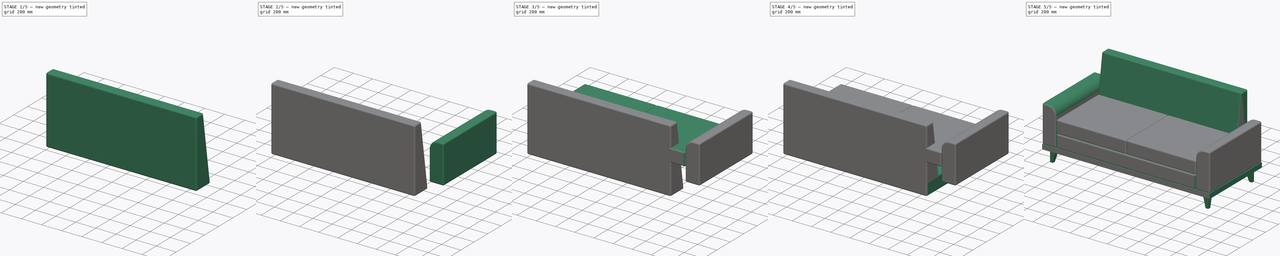
[diagram: build sequence overview — one tinted view per stage of 5, left to right]
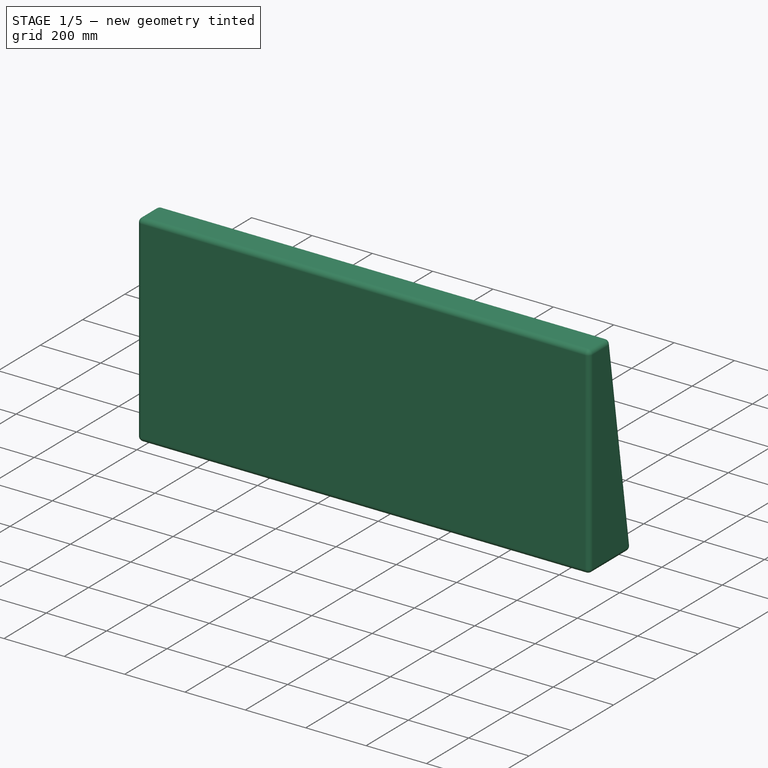
[diagram: stage 1 of 5 — iso view after this stage's code; geometry added in this stage tinted green]
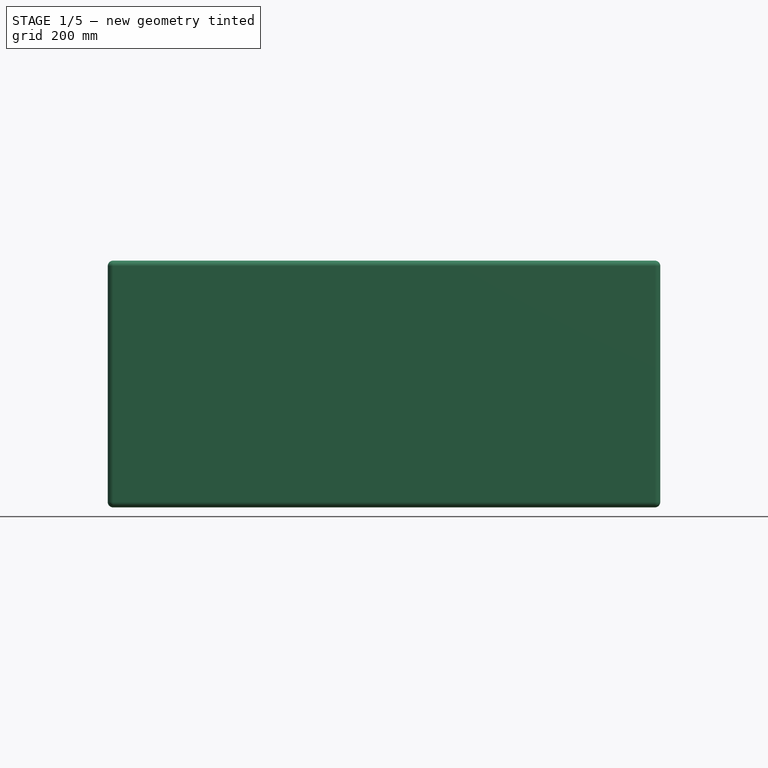
[diagram: stage 1 of 5 — front view after this stage's code; geometry added in this stage tinted green]
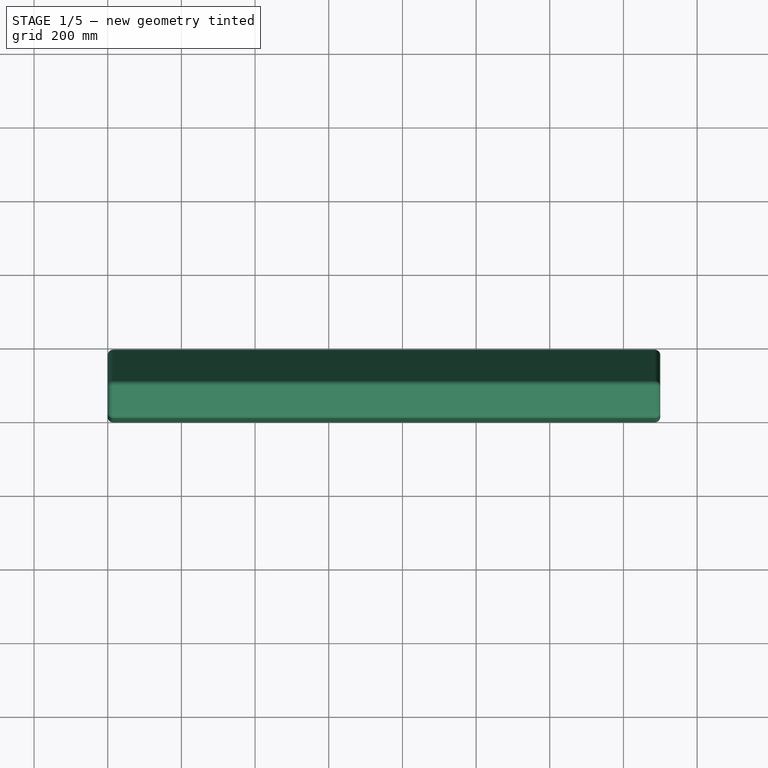
[diagram: stage 1 of 5 — top view after this stage's code; geometry added in this stage tinted green]
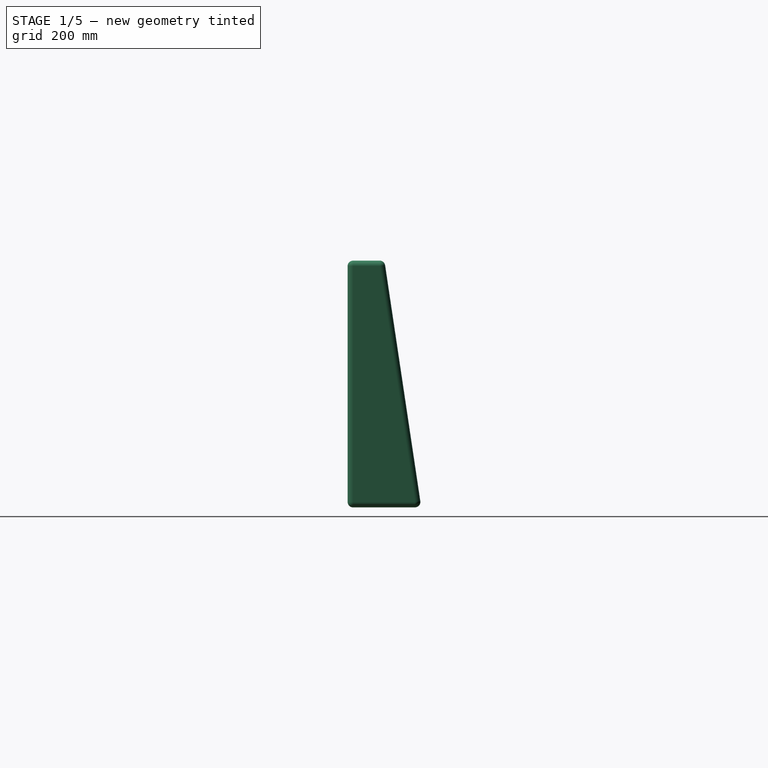
[diagram: stage 1 of 5 — right view after this stage's code; geometry added in this stage tinted green]
FCSTD DOCUMENT  (FreeCAD 0.21R33668 +26 (Git))
Label: Poltrona
License: All rights reserved
objects: Sketcher::SketchObject×7, Part::FeaturePython×6, PartDesign::Pad×4, PartDesign::Fillet×4, PartDesign::Body×4, Part::Extrusion×1, Part::Loft×1, Part::Compound×1
note: 36 computed .brp shape members not serialized (recipe doc carries the construction recipe); baked Part::Feature solids carry a one-line shape summary decoded from their .brp

FEATURE [Part::FeaturePython] Point  label="Propriedades Poltrona"  # WARN: FeaturePython — macro-defined, semantics opaque (R4)
  AlturaAcento = 460
  AlturaBraco = 400
  AlturaEscora = 850
  AlturaPe = 130
  Comprimento = 1800
  Largura = 800
  LarguraBraco = 150
  LarguraEscora = 100
  LarguraPe = 30
  NumAcentos = 2
  RaioEstofado = 15
  X = 0
  Y = 0
  Z = 0
FEATURE [Sketcher::SketchObject] Sketch
  FullyConstrained = true
  expr: Constraints[10] = <<Propriedades Poltrona>>.Largura
  expr: Constraints[9] = <<Propriedades Poltrona>>.Comprimento
  sketch-geometry (4):
    g0: LineSegment StartX=0 StartY=0 StartZ=0 EndX=1800 EndY=0 EndZ=0
    g1: LineSegment StartX=1800 StartY=0 StartZ=0 EndX=1800 EndY=800 EndZ=0
    g2: LineSegment StartX=1800 StartY=800 StartZ=0 EndX=0 EndY=800 EndZ=0
    g3: LineSegment StartX=0 StartY=800 StartZ=0 EndX=0 EndY=0 EndZ=0
  constraints (11):
    c: Coincident(g0,g1)
    c: Coincident(g1,g2)
    c: Coincident(g2,g3)
    c: Coincident(g3,g0)
    c: Horizontal(g0)
    c: Horizontal(g2)
    c: Vertical(g1)
    c: Vertical(g3)
    c: Coincident(g0,g-1)
    c: DistanceX(g2,g2) = 1800
    c: DistanceY(g1,g1) = 800
FEATURE [Part::Extrusion] Extrude  label="Base Madeira"
  Base = -> Sketch
  Dir = (0,0,1)
  DirMode = 2
  FaceMakerClass = Part::FaceMakerBullseye
  LengthFwd = 50
  LengthRev = 0
  Placement = pos=(0,0,130) rot=(0,0,1;0rad)
  Solid = true
  Symmetric = false
  expr: .Placement.Base.z = <<Propriedades Poltrona>>.AlturaPe
FEATURE [Sketcher::SketchObject] Sketch006
  FullyConstrained = true
  Placement = pos=(0,0,0) rot=(0.57735,0.57735,0.57735;2.0944rad)
  expr: Constraints[10] = 2 * <<Propriedades Poltrona>>.LarguraEscora
  expr: Constraints[8] = <<Propriedades Poltrona>>.AlturaEscora - <<Propriedades Poltrona>>.AlturaPe - <<Base Madeira>>.LengthFwd
  expr: Constraints[9] = <<Propriedades Poltrona>>.LarguraEscora
  sketch-geometry (4):
    g0: LineSegment StartX=0 StartY=0 StartZ=0 EndX=0 EndY=670 EndZ=0
    g1: LineSegment StartX=0 StartY=670 StartZ=0 EndX=100 EndY=670 EndZ=0
    g2: LineSegment StartX=100 StartY=670 StartZ=0 EndX=200 EndY=0 EndZ=0
    g3: LineSegment StartX=0 StartY=0 StartZ=0 EndX=200 EndY=0 EndZ=0
  constraints (11):
    c: Coincident(g0,g-1)
    c: Vertical(g0)
    c: Coincident(g1,g0)
    c: Coincident(g2,g1)
    c: PointOnObject(g2,g-1)
    c: Coincident(g3,g0)
    c: Coincident(g3,g2)
    c: Horizontal(g1)
    c: DistanceY(g0,g0) = 670
    c: DistanceX(g1,g1) = 100
    c: DistanceX(g3,g3) = 200
FEATURE [PartDesign::Pad] Pad003
  Direction = (1,0,0)
  Length = 1500
  Length2 = 10
  Placement = pos=(0,0,0) rot=(0.57735,0.57735,0.57735;2.0944rad)
  Profile = -> Sketch006
  ReferenceAxis = -> Sketch006 [N_Axis]
  Type = 0
  expr: Length = <<Propriedades Poltrona>>.Comprimento - 2 * <<Propriedades Poltrona>>.LarguraBraco
FEATURE [PartDesign::Fillet] Fillet003
  Base = -> Pad003 [Face6,Face3,Face2,Face1,Face4,Face5]
  BaseFeature = -> Pad003
  Placement = pos=(0,0,0) rot=(0.57735,0.57735,0.57735;2.0944rad)
  Radius = 15
  SupportTransform = false
  UseAllEdges = false
  expr: Radius = <<Propriedades Poltrona>>.RaioEstofado
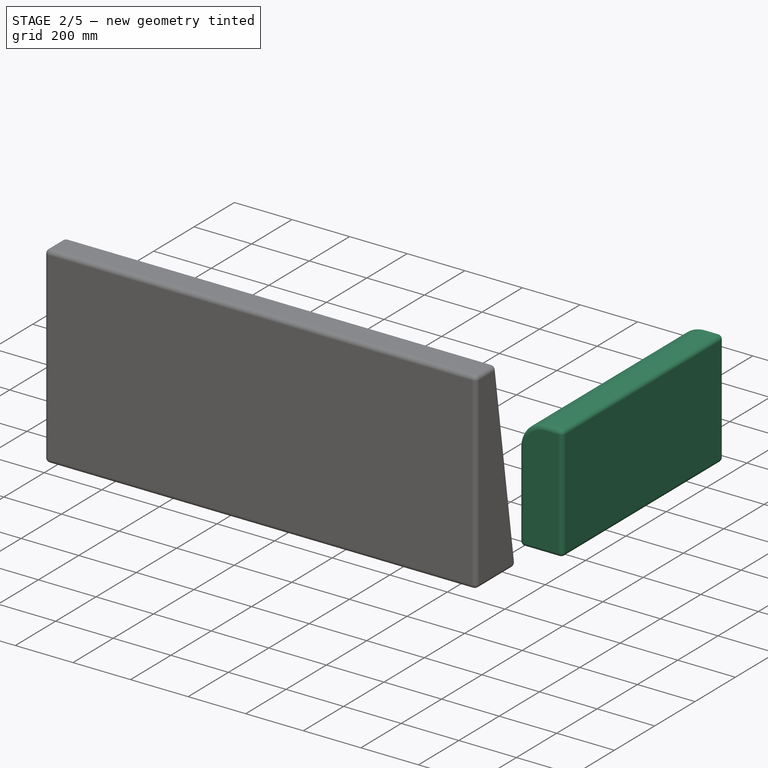
[diagram: stage 2 of 5 — iso view after this stage's code; geometry added in this stage tinted green]
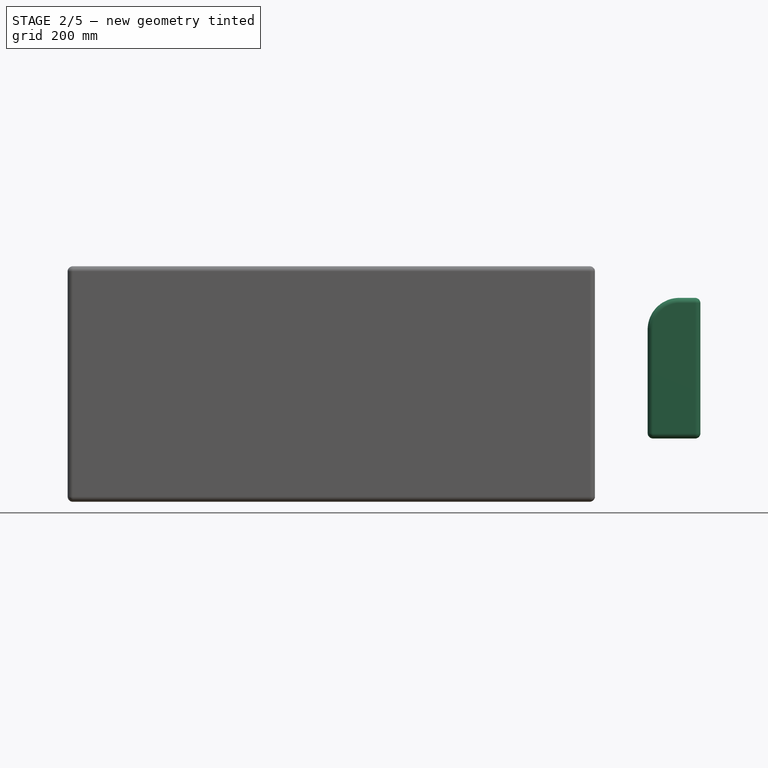
[diagram: stage 2 of 5 — front view after this stage's code; geometry added in this stage tinted green]
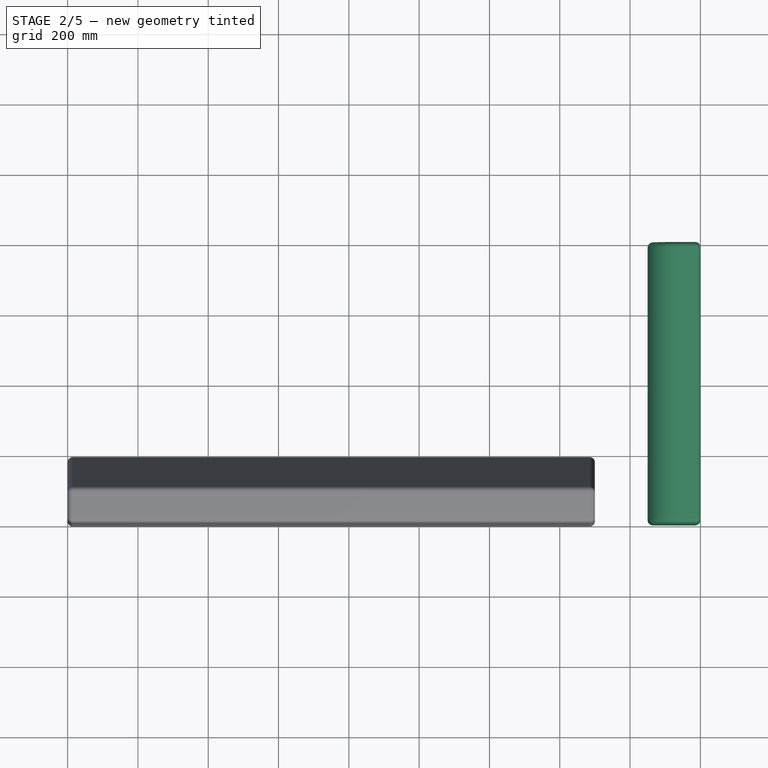
[diagram: stage 2 of 5 — top view after this stage's code; geometry added in this stage tinted green]
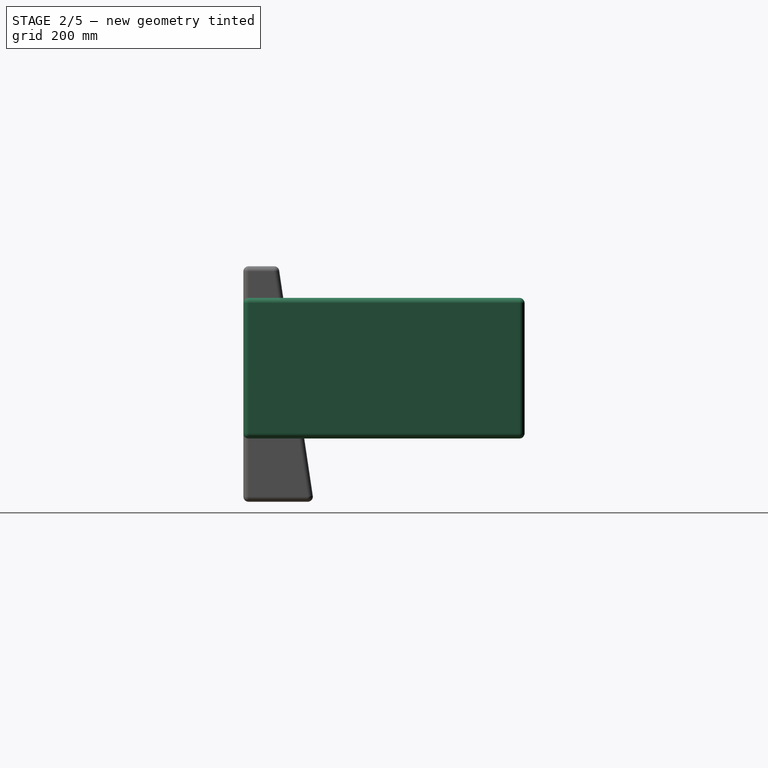
[diagram: stage 2 of 5 — right view after this stage's code; geometry added in this stage tinted green]
FEATURE [Sketcher::SketchObject] Sketch005
  FullyConstrained = true
  MapMode = 5
  Placement = pos=(0,0,0) rot=(1,0,0;1.5708rad)
  Support = -> [XZ_Plane002]
  expr: Constraints[14] = 0.6 * <<Propriedades Poltrona>>.LarguraBraco
  expr: Constraints[8] = <<Propriedades Poltrona>>.AlturaBraco
  expr: Constraints[9] = <<Propriedades Poltrona>>.LarguraBraco
  sketch-geometry (6):
    g0: LineSegment StartX=0 StartY=0 StartZ=0 EndX=150 EndY=0 EndZ=0
    g1: LineSegment StartX=150 StartY=0 StartZ=0 EndX=150 EndY=310 EndZ=0
    g2: LineSegment StartX=60 StartY=400 StartZ=0 EndX=0 EndY=400 EndZ=0
    g3: LineSegment StartX=0 StartY=400 StartZ=0 EndX=0 EndY=0 EndZ=0
    g4: ArcOfCircle CenterX=60 CenterY=310 CenterZ=0 NormalX=0 NormalY=0 NormalZ=1 AngleXU=0 Radius=90 StartAngle=2e-16 EndAngle=1.5708
    g5: GeomPoint X=150 Y=400 Z=0
  constraints (15):
    c: Coincident(g0,g1)
    c: Coincident(g2,g3)
    c: Coincident(g3,g0)
    c: Horizontal(g0)
    c: Horizontal(g2)
    c: Vertical(g1)
    c: Vertical(g3)
    c: Coincident(g0,g-1)
    c: DistanceY(g3,g3) = 400
    c: DistanceX(g0,g0) = 150
    c: PointOnObject(g5,g2)
    c: PointOnObject(g5,g1)
    c: Tangent(g2,g4) = -1.5708
    c: Tangent(g1,g4) = -1.5708
    c: Radius(g4) = 90
FEATURE [PartDesign::Pad] Pad002
  Direction = (0,-1,2e-16)
  Length = 800
  Length2 = 10
  Placement = pos=(0,0,0) rot=(1,0,0;1.5708rad)
  Profile = -> Sketch005
  ReferenceAxis = -> Sketch005 [N_Axis]
  Type = 0
  expr: Length = <<Propriedades Poltrona>>.Largura
FEATURE [PartDesign::Fillet] Fillet002
  Base = -> Pad002 [Edge1,Edge2,Edge3,Edge4,Edge5,Edge6,Edge7,Edge8,Edge9,Edge10,Edge11,Edge12,Edge13,Edge14,Edge15]
  BaseFeature = -> Pad002
  Placement = pos=(0,0,0) rot=(1,0,0;1.5708rad)
  Radius = 15
  SupportTransform = false
  UseAllEdges = true
  expr: Radius = <<Propriedades Poltrona>>.RaioEstofado
FEATURE [PartDesign::Body] Body002  label="Braco"
  Group = -> [Sketch005,Pad002,Fillet002]
  Origin = -> Origin002
  Placement = pos=(0,800,180) rot=(0,0,1;0rad)
  Tip = -> Fillet002
  expr: .Placement.Base.y = <<Propriedades Poltrona>>.Largura
  expr: .Placement.Base.z = <<Propriedades Poltrona>>.AlturaPe + <<Base Madeira>>.LengthFwd
FEATURE [Part::FeaturePython] Clone003  label="Braco001"  # Draft clone (typed FeaturePython)
  AttacherType = Attacher::AttachEngine3D
  Fuse = false
  Objects = -> [Body002]
  Placement = pos=(1800,0,180) rot=(0,0,1;3.14159rad)
  Scale = (1,1,1)
  expr: .Placement.Base.x = <<Propriedades Poltrona>>.Comprimento
  expr: .Placement.Base.z = <<Propriedades Poltrona>>.AlturaPe + <<Base Madeira>>.LengthFwd
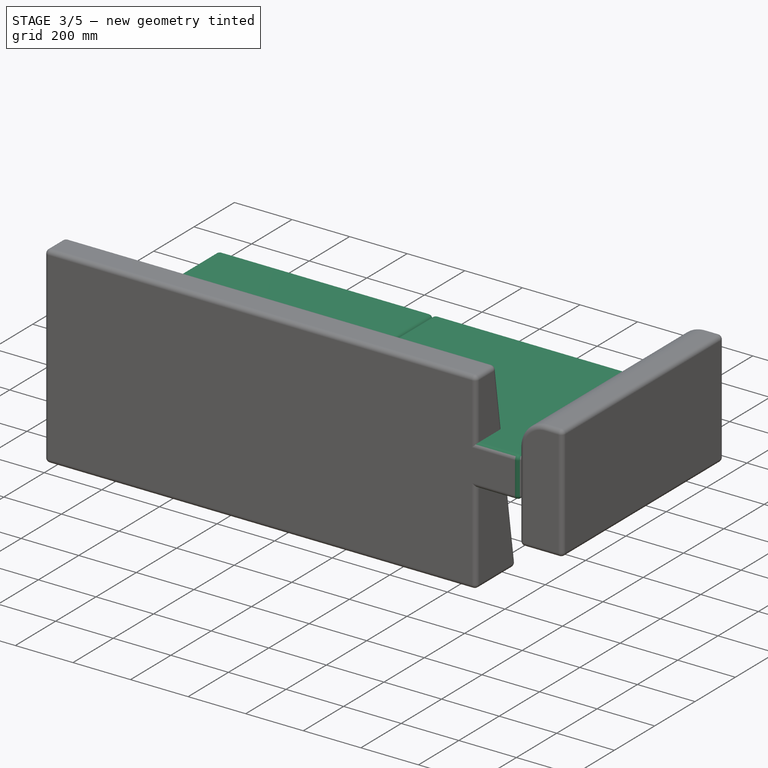
[diagram: stage 3 of 5 — iso view after this stage's code; geometry added in this stage tinted green]
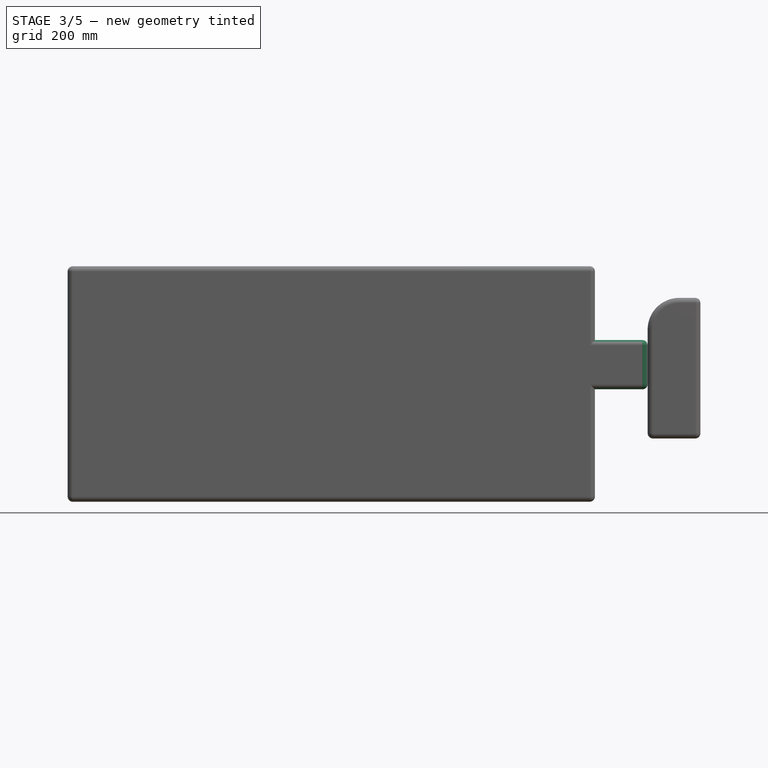
[diagram: stage 3 of 5 — front view after this stage's code; geometry added in this stage tinted green]
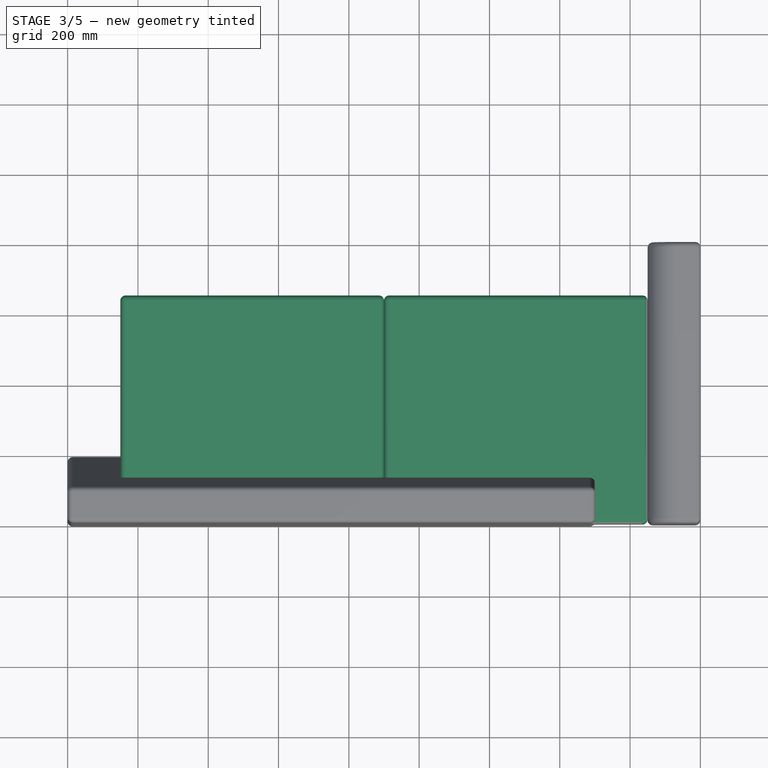
[diagram: stage 3 of 5 — top view after this stage's code; geometry added in this stage tinted green]
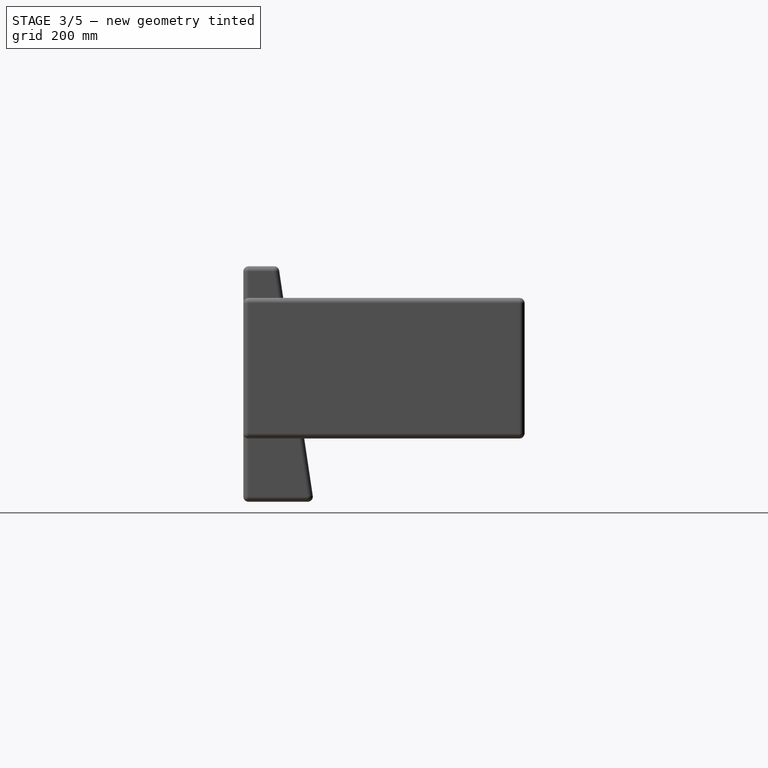
[diagram: stage 3 of 5 — right view after this stage's code; geometry added in this stage tinted green]
FEATURE [Sketcher::SketchObject] Sketch003
  FullyConstrained = true
  expr: Constraints[10] = <<Propriedades Poltrona>>.Largura - 1.5 * <<Propriedades Poltrona>>.LarguraEscora
  expr: Constraints[9] = <<Propriedades Poltrona>>.Comprimento - 2 * <<Propriedades Poltrona>>.LarguraBraco
  sketch-geometry (4):
    g0: LineSegment StartX=0 StartY=0 StartZ=0 EndX=1500 EndY=0 EndZ=0
    g1: LineSegment StartX=1500 StartY=0 StartZ=0 EndX=1500 EndY=650 EndZ=0
    g2: LineSegment StartX=1500 StartY=650 StartZ=0 EndX=0 EndY=650 EndZ=0
    g3: LineSegment StartX=0 StartY=650 StartZ=0 EndX=0 EndY=0 EndZ=0
  constraints (11):
    c: Coincident(g0,g1)
    c: Coincident(g1,g2)
    c: Coincident(g2,g3)
    c: Coincident(g3,g0)
    c: Horizontal(g0)
    c: Horizontal(g2)
    c: Vertical(g1)
    c: Vertical(g3)
    c: Coincident(g0,g-1)
    c: DistanceX(g2,g2) = 1500
    c: DistanceY(g1,g1) = 650
FEATURE [PartDesign::Pad] Pad
  Direction = (0,0,1)
  Length = 140
  Length2 = 10
  Profile = -> Sketch003
  ReferenceAxis = -> Sketch003 [N_Axis]
  Type = 0
  expr: Length = (<<Propriedades Poltrona>>.AlturaAcento - <<Propriedades Poltrona>>.AlturaPe - <<Base Madeira>>.LengthFwd) / 2
FEATURE [PartDesign::Body] Body  label="BaseEstofado"
  Group = -> [Sketch003,Pad,Fillet]
  Origin = -> Origin
  Placement = pos=(150,0,180) rot=(0,0,1;0rad)
  Tip = -> Fillet
  expr: .Placement.Base.x = <<Propriedades Poltrona>>.LarguraBraco
  expr: .Placement.Base.z = <<Propriedades Poltrona>>.AlturaPe + <<Base Madeira>>.LengthFwd
FEATURE [Sketcher::SketchObject] Sketch004
  FullyConstrained = true
  expr: Constraints[10] = <<Propriedades Poltrona>>.Largura - <<Propriedades Poltrona>>.LarguraEscora * 1.5
  expr: Constraints[9] = (<<Propriedades Poltrona>>.Comprimento - 2 * <<Propriedades Poltrona>>.LarguraBraco) / <<Propriedades Poltrona>>.NumAcentos
  sketch-geometry (4):
    g0: LineSegment StartX=0 StartY=0 StartZ=0 EndX=750 EndY=0 EndZ=0
    g1: LineSegment StartX=750 StartY=0 StartZ=0 EndX=750 EndY=650 EndZ=0
    g2: LineSegment StartX=750 StartY=650 StartZ=0 EndX=0 EndY=650 EndZ=0
    g3: LineSegment StartX=0 StartY=650 StartZ=0 EndX=0 EndY=0 EndZ=0
  constraints (11):
    c: Coincident(g0,g1)
    c: Coincident(g1,g2)
    c: Coincident(g2,g3)
    c: Coincident(g3,g0)
    c: Horizontal(g0)
    c: Horizontal(g2)
    c: Vertical(g1)
    c: Vertical(g3)
    c: Coincident(g0,g-1)
    c: DistanceX(g2,g2) = 750
    c: DistanceY(g1,g1) = 650
FEATURE [PartDesign::Pad] Pad001
  Direction = (0,0,1)
  Length = 140
  Length2 = 10
  Profile = -> Sketch004
  ReferenceAxis = -> Sketch004 [N_Axis]
  Type = 0
  expr: Length = (<<Propriedades Poltrona>>.AlturaAcento - <<Propriedades Poltrona>>.AlturaPe - <<Base Madeira>>.LengthFwd) / 2
FEATURE [PartDesign::Fillet] Fillet001
  Base = -> Pad001 [Edge1,Edge2,Edge3,Edge4,Edge5,Edge6,Edge7,Edge8,Edge9,Edge10,Edge11,Edge12]
  BaseFeature = -> Pad001
  Radius = 15
  SupportTransform = false
  UseAllEdges = true
  expr: Radius = <<Propriedades Poltrona>>.RaioEstofado
FEATURE [PartDesign::Body] Body001  label="Almofada"
  Group = -> [Sketch004,Pad001,Fillet001]
  Origin = -> Origin001
  Tip = -> Fillet001
FEATURE [Part::FeaturePython] Array  # Draft array (typed FeaturePython)
  Angle = 360
  ArrayType = 0
  Axis = (0,0,1)
  Base = -> Body001
  Center = (0,0,0)
  Count = 2
  Fuse = true
  IntervalAxis = (0,0,0)
  IntervalX = (750,0,0)
  IntervalY = (0,100,0)
  IntervalZ = (0,0,100)
  NumberCircles = 3
  NumberPolar = 5
  NumberX = 2
  NumberY = 1
  NumberZ = 1
  Placement = pos=(150,0,320) rot=(0,0,1;0rad)
  RadialDistance = 50
  Symmetry = 1
  TangentialDistance = 25
  expr: .IntervalX.x = (<<Propriedades Poltrona>>.Comprimento - 2 * <<Propriedades Poltrona>>.LarguraBraco) / <<Propriedades Poltrona>>.NumAcentos
  expr: .Placement.Base.x = <<Propriedades Poltrona>>.LarguraBraco
  expr: .Placement.Base.z = <<Propriedades Poltrona>>.AlturaPe + <<Base Madeira>>.LengthFwd + <<Pad>>.Length
  expr: NumberX = <<Propriedades Poltrona>>.NumAcentos
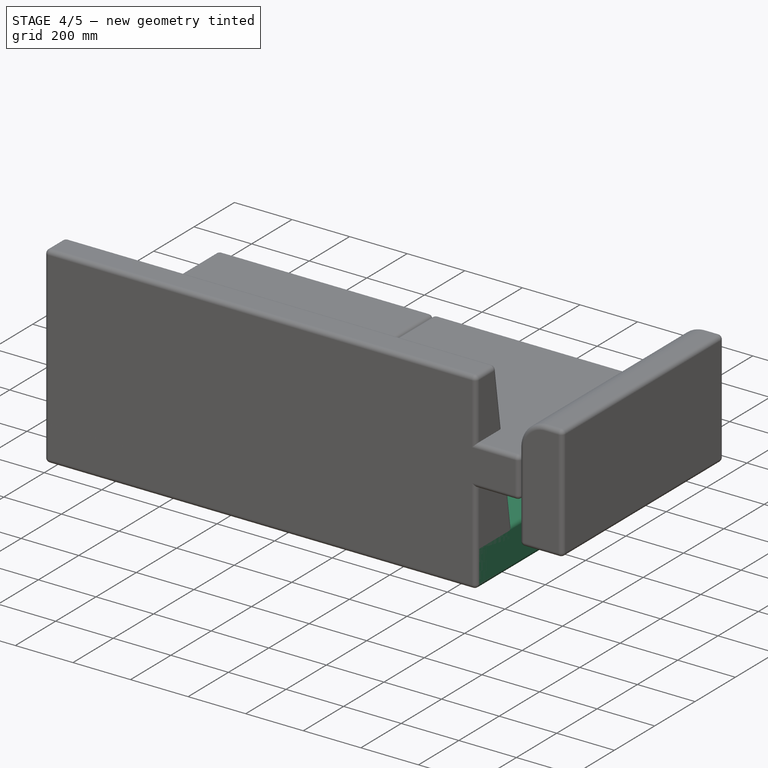
[diagram: stage 4 of 5 — iso view after this stage's code; geometry added in this stage tinted green]
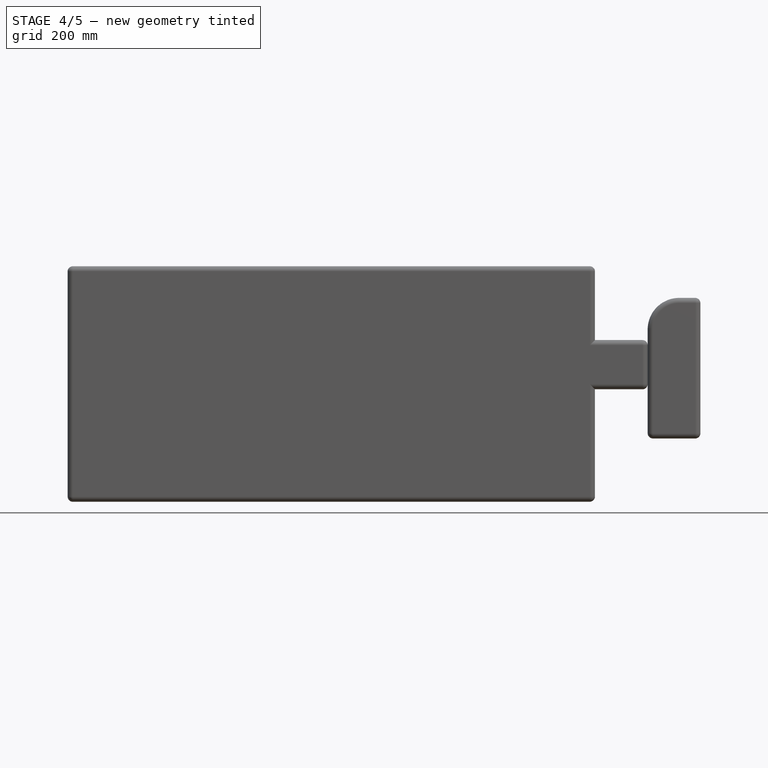
[diagram: stage 4 of 5 — front view after this stage's code; geometry added in this stage tinted green]
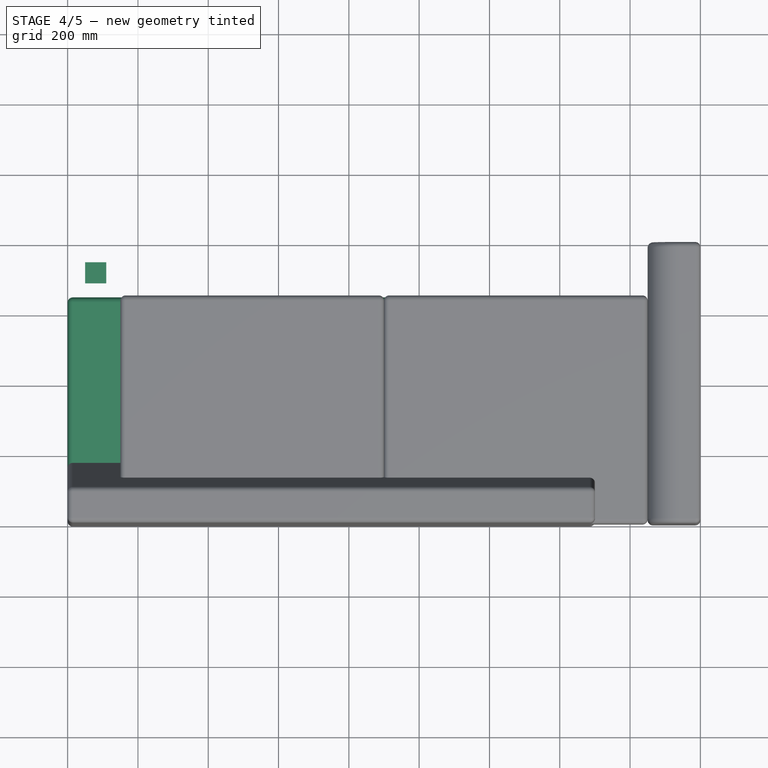
[diagram: stage 4 of 5 — top view after this stage's code; geometry added in this stage tinted green]
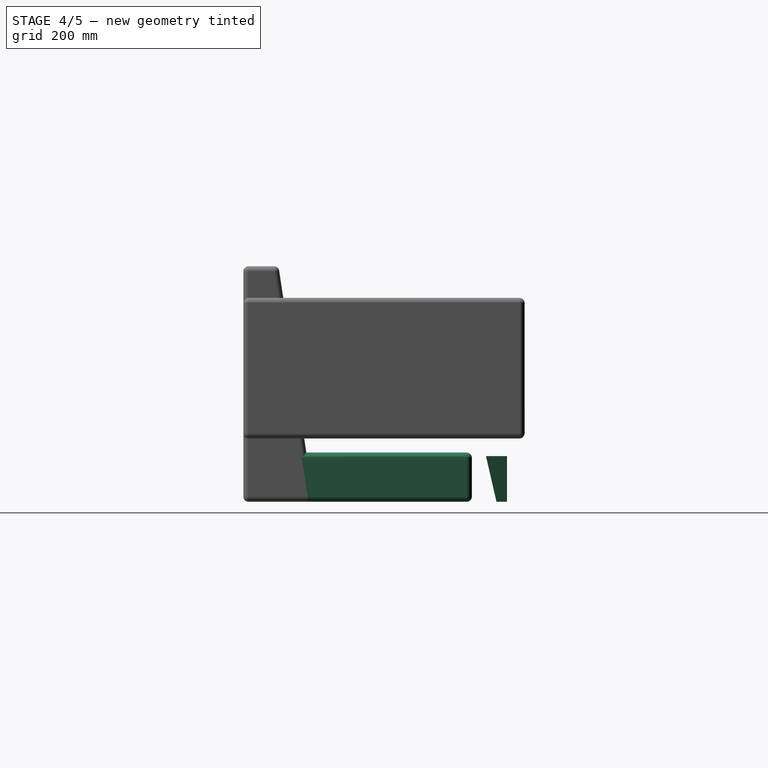
[diagram: stage 4 of 5 — right view after this stage's code; geometry added in this stage tinted green]
FEATURE [Sketcher::SketchObject] Sketch001
  FullyConstrained = true
  expr: Constraints[10] = <<Propriedades Poltrona>>.LarguraPe
  sketch-geometry (4):
    g0: LineSegment StartX=0 StartY=0 StartZ=0 EndX=30 EndY=0 EndZ=0
    g1: LineSegment StartX=30 StartY=0 StartZ=0 EndX=30 EndY=30 EndZ=0
    g2: LineSegment StartX=30 StartY=30 StartZ=0 EndX=0 EndY=30 EndZ=0
    g3: LineSegment StartX=0 StartY=30 StartZ=0 EndX=0 EndY=0 EndZ=0
  constraints (11):
    c: Coincident(g0,g1)
    c: Coincident(g1,g2)
    c: Coincident(g2,g3)
    c: Coincident(g3,g0)
    c: Horizontal(g0)
    c: Horizontal(g2)
    c: Vertical(g1)
    c: Vertical(g3)
    c: Coincident(g0,g-1)
    c: Equal(g2,g3)
    c: DistanceX(g2,g2) = 30
FEATURE [Sketcher::SketchObject] Sketch002
  FullyConstrained = true
  Placement = pos=(0,0,130) rot=(0,0,1;0rad)
  expr: .Placement.Base.z = <<Propriedades Poltrona>>.AlturaPe
  expr: Constraints[10] = <<Propriedades Poltrona>>.LarguraPe * 2
  sketch-geometry (4):
    g0: LineSegment StartX=0 StartY=0 StartZ=0 EndX=60 EndY=0 EndZ=0
    g1: LineSegment StartX=60 StartY=0 StartZ=0 EndX=60 EndY=60 EndZ=0
    g2: LineSegment StartX=60 StartY=60 StartZ=0 EndX=0 EndY=60 EndZ=0
    g3: LineSegment StartX=0 StartY=60 StartZ=0 EndX=0 EndY=0 EndZ=0
  constraints (11):
    c: Coincident(g0,g1)
    c: Coincident(g1,g2)
    c: Coincident(g2,g3)
    c: Coincident(g3,g0)
    c: Horizontal(g0)
    c: Horizontal(g2)
    c: Vertical(g1)
    c: Vertical(g3)
    c: Coincident(g0,g-1)
    c: Equal(g2,g3)
    c: DistanceX(g2,g2) = 60
FEATURE [Part::Loft] Loft  label="Pe "
  Closed = false
  MaxDegree = 5
  Placement = pos=(50,50,0) rot=(0,0,1;0rad)
  Ruled = false
  Sections = -> [Sketch002,Sketch001]
  Solid = true
FEATURE [Part::FeaturePython] Clone  label="Pe 001"  # Draft clone (typed FeaturePython)
  AttacherType = Attacher::AttachEngine3D
  Fuse = false
  Objects = -> [Loft]
  Placement = pos=(50,750,0) rot=(0,0,1;4.71239rad)
  Scale = (1,1,1)
  expr: .Placement.Base.y = <<Propriedades Poltrona>>.Largura - 5 cm
FEATURE [PartDesign::Fillet] Fillet
  Base = -> Pad [Edge1,Edge2,Edge3,Edge4,Edge5,Edge6,Edge7,Edge8,Edge9,Edge10,Edge11,Edge12]
  BaseFeature = -> Pad
  Radius = 15
  SupportTransform = false
  UseAllEdges = true
  expr: Radius = <<Propriedades Poltrona>>.RaioEstofado
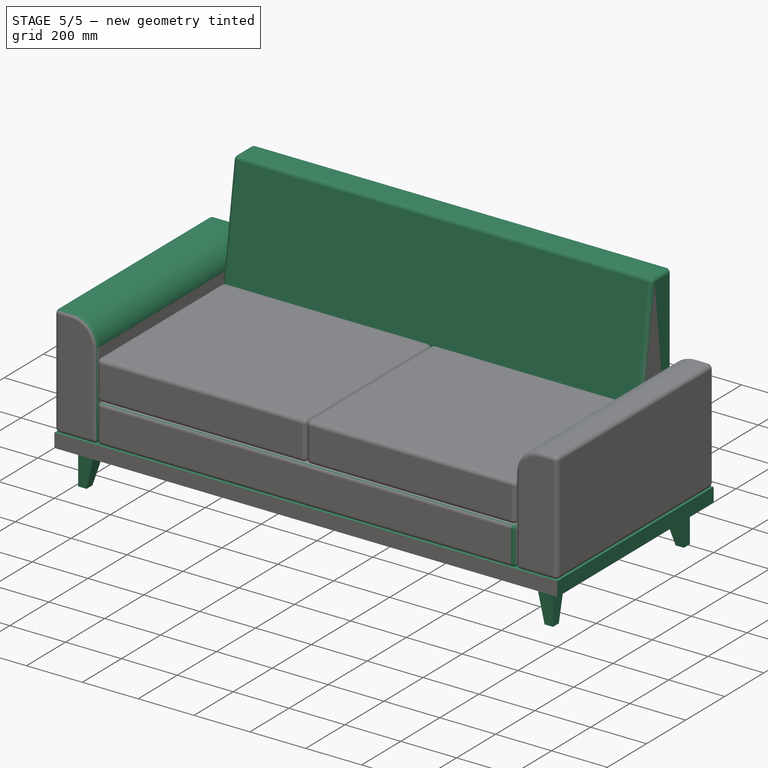
[diagram: stage 5 of 5 — iso view after this stage's code; geometry added in this stage tinted green]
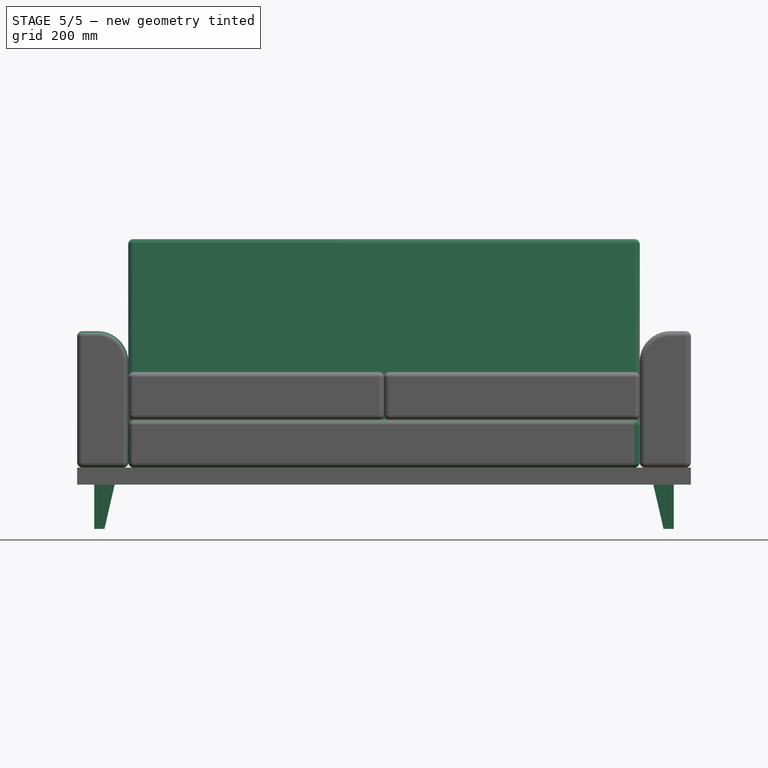
[diagram: stage 5 of 5 — front view after this stage's code; geometry added in this stage tinted green]
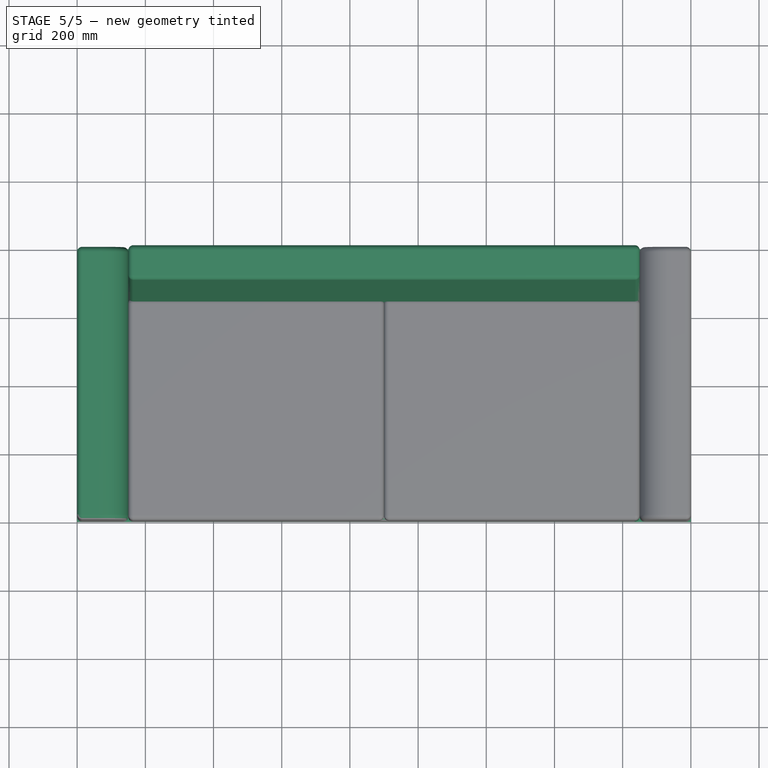
[diagram: stage 5 of 5 — top view after this stage's code; geometry added in this stage tinted green]
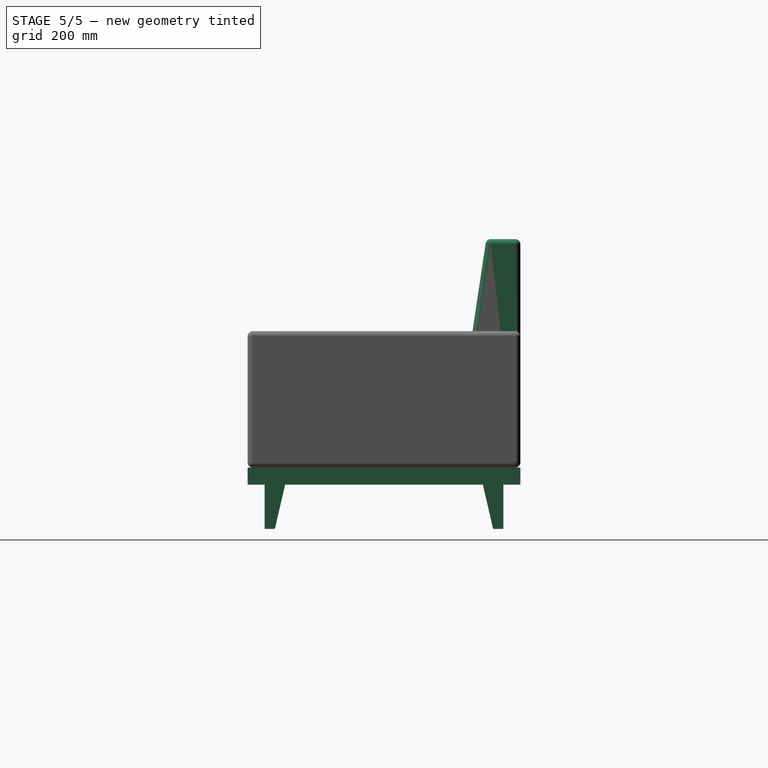
[diagram: stage 5 of 5 — right view after this stage's code; geometry added in this stage tinted green]
FEATURE [Part::FeaturePython] Clone001  label="Pe 002"  # Draft clone (typed FeaturePython)
  AttacherType = Attacher::AttachEngine3D
  Fuse = false
  Objects = -> [Clone]
  Placement = pos=(1750,50,0) rot=(0,0,1;1.5708rad)
  Scale = (1,1,1)
  expr: .Placement.Base.x = <<Propriedades Poltrona>>.Comprimento - 5 cm
FEATURE [Part::FeaturePython] Clone002  label="Pe 003"  # Draft clone (typed FeaturePython)
  AttacherType = Attacher::AttachEngine3D
  Fuse = false
  Objects = -> [Clone001]
  Placement = pos=(1750,750,0) rot=(0,0,1;3.14159rad)
  Scale = (1,1,1)
  expr: .Placement.Base.x = <<Propriedades Poltrona>>.Comprimento - 5 cm
  expr: .Placement.Base.y = <<Propriedades Poltrona>>.Largura - 5 cm
FEATURE [PartDesign::Body] Body003  label="Escora"
  Group = -> [Sketch006,Pad003,Fillet003]
  Origin = -> Origin003
  Placement = pos=(1650,800,180) rot=(0,0,1;3.14159rad)
  Tip = -> Fillet003
  expr: .Placement.Base.x = <<Propriedades Poltrona>>.Comprimento - 2 * <<Propriedades Poltrona>>.LarguraBraco + <<Propriedades Poltrona>>.LarguraBraco
  expr: .Placement.Base.y = <<Propriedades Poltrona>>.Largura
  expr: .Placement.Base.z = <<Propriedades Poltrona>>.AlturaPe + <<Base Madeira>>.LengthFwd
FEATURE [Part::Compound] Compound  label="Poltrona"
  Links = -> [Extrude,Loft,Clone,Clone001,Clone002,Body,Array,Body002,Clone003,Body003]
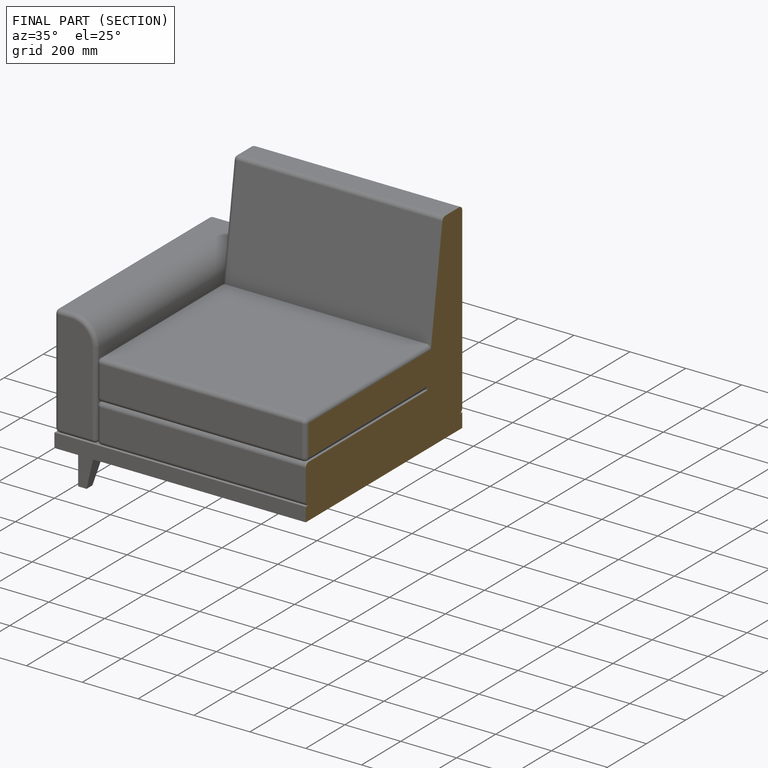
[diagram: finished part — half-section view (interior)]
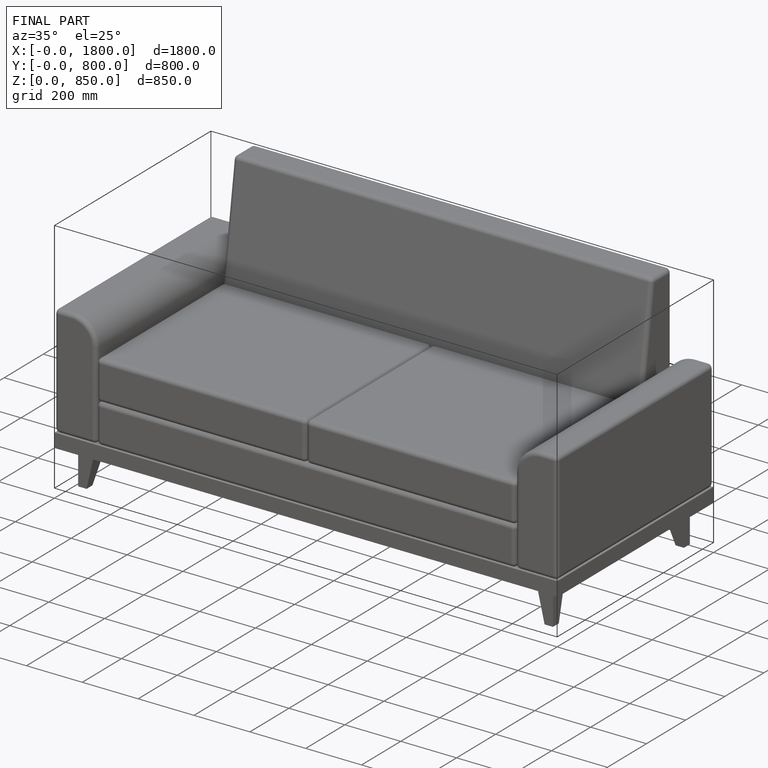
[diagram: finished part — iso view with bounding-box wireframe]
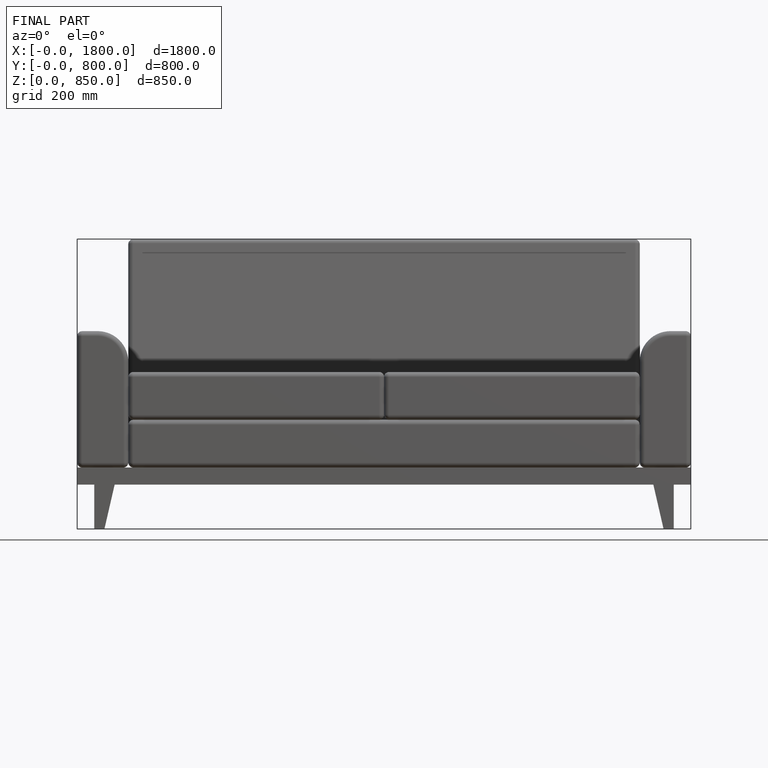
[diagram: finished part — front view with bounding-box wireframe]
